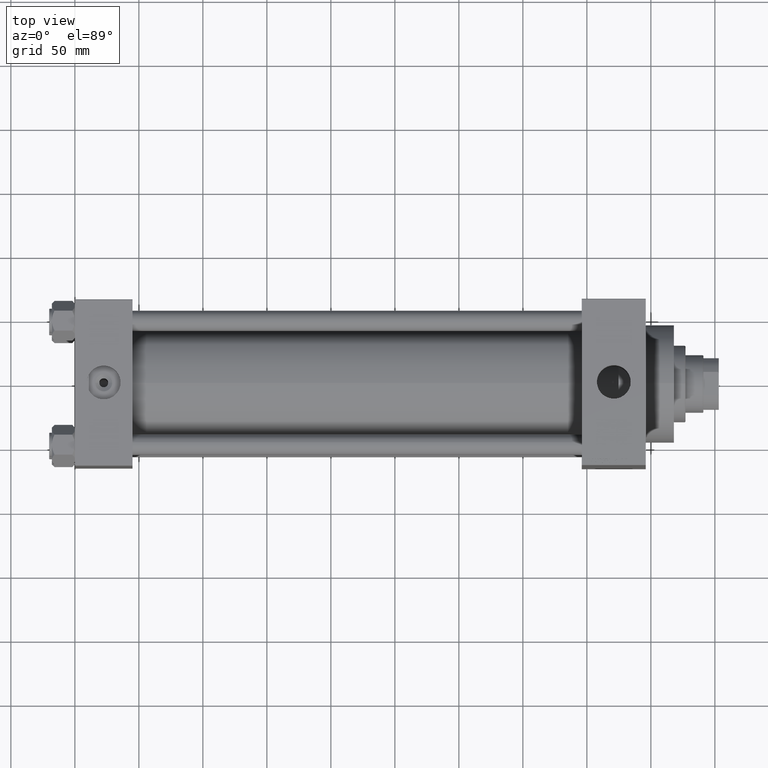
[diagram: clean part render]
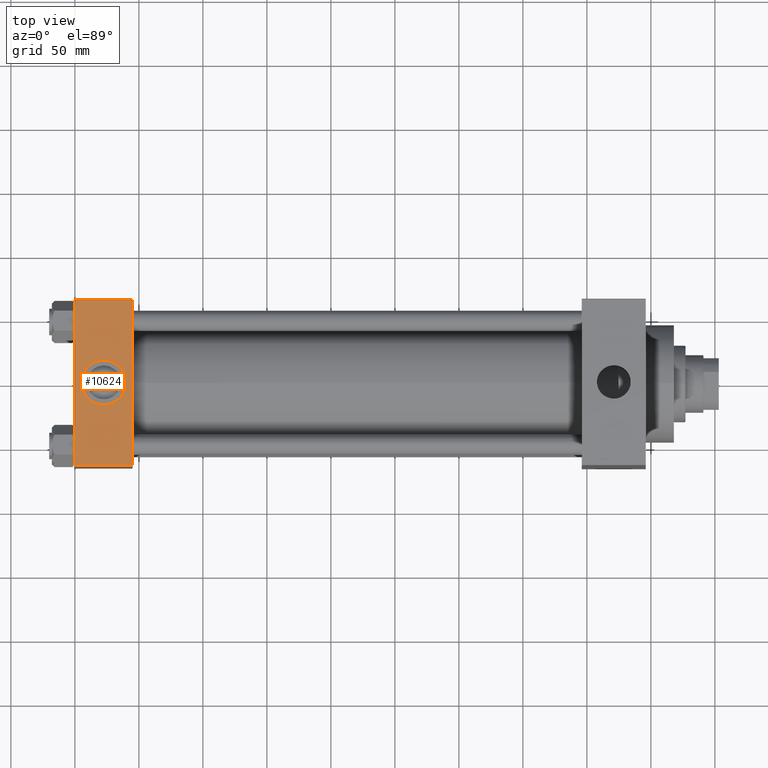
[diagram: same view with one face highlighted and labeled with its STEP entity id]
A machine part, top view. The second image highlights one B-rep face of the part: STEP entity #10624.
In plain terms, the highlighted planar face has unit normal (0, 0, -1).
Its self-contained STEP definition (entity closure, byte-faithful):
#1246 = CIRCLE ( 'NONE', #29810, 17.50000000000000000 ) ;
#1966 = CARTESIAN_POINT ( 'NONE',  ( 22.50000000000000000, -8.673617379884035472E-15, 65.00000000000000000 ) ) ;
#2434 = LINE ( 'NONE', #17181, #43307 ) ;
#2525 = DIRECTION ( 'NONE',  ( 0.000000000000000000, -1.000000000000000000, -1.067522139062650425E-16 ) ) ;
#3732 = EDGE_CURVE ( 'NONE', #23314, #37825, #1246, .T. ) ;
#3801 = DIRECTION ( 'NONE',  ( -1.000000000000000000, 0.000000000000000000, 0.000000000000000000 ) ) ;
#6085 = DIRECTION ( 'NONE',  ( 1.000000000000000000, 0.000000000000000000, 0.000000000000000000 ) ) ;
#7191 = LINE ( 'NONE', #29448, #39944 ) ;
#7348 = ORIENTED_EDGE ( 'NONE', *, *, #3732, .F. ) ;
#7709 = EDGE_LOOP ( 'NONE', ( #7348, #33760 ) ) ;
#9391 = CARTESIAN_POINT ( 'NONE',  ( 0.000000000000000000, -64.49999999999997158, 65.00000000000000000 ) ) ;
#9709 = CARTESIAN_POINT ( 'NONE',  ( 45.00000000000000000, -64.49999999999997158, 65.00000000000000000 ) ) ;
#10624 = ADVANCED_FACE ( 'NONE', ( #24027, #16538 ), #38563, .F. ) ;
#11645 = EDGE_CURVE ( 'NONE', #20869, #46741, #42880, .T. ) ;
#11973 = CARTESIAN_POINT ( 'NONE',  ( 45.00000000000000000, 64.49999999999997158, 65.00000000000001421 ) ) ;
#13181 = CARTESIAN_POINT ( 'NONE',  ( 0.000000000000000000, 64.49999999999997158, 65.00000000000001421 ) ) ;
#14494 = VECTOR ( 'NONE', #6085, 1000.000000000000000 ) ;
#15718 = DIRECTION ( 'NONE',  ( 0.000000000000000000, 0.000000000000000000, 1.000000000000000000 ) ) ;
#16538 = FACE_OUTER_BOUND ( 'NONE', #36047, .T. ) ;
#17181 = CARTESIAN_POINT ( 'NONE',  ( 0.000000000000000000, 65.00000000000000000, 65.00000000000001421 ) ) ;
#17279 = EDGE_CURVE ( 'NONE', #25049, #46741, #17502, .T. ) ;
#17502 = LINE ( 'NONE', #43182, #45486 ) ;
#18297 = ORIENTED_EDGE ( 'NONE', *, *, #41647, .T. ) ;
#18299 = EDGE_CURVE ( 'NONE', #37825, #23314, #40126, .T. ) ;
#18445 = AXIS2_PLACEMENT_3D ( 'NONE', #1966, #28315, #31712 ) ;
#20869 = VERTEX_POINT ( 'NONE', #9391 ) ;
#22239 = ORIENTED_EDGE ( 'NONE', *, *, #11645, .T. ) ;
#23314 = VERTEX_POINT ( 'NONE', #30528 ) ;
#24027 = FACE_BOUND ( 'NONE', #7709, .T. ) ;
#25049 = VERTEX_POINT ( 'NONE', #11973 ) ;
#25381 = DIRECTION ( 'NONE',  ( 0.000000000000000000, -1.000000000000000000, -1.067522139062650425E-16 ) ) ;
#26830 = DIRECTION ( 'NONE',  ( 1.000000000000000000, 0.000000000000000000, 0.000000000000000000 ) ) ;
#28315 = DIRECTION ( 'NONE',  ( 0.000000000000000000, 0.000000000000000000, 1.000000000000000000 ) ) ;
#29448 = CARTESIAN_POINT ( 'NONE',  ( 0.000000000000000000, 64.49999999999997158, 65.00000000000001421 ) ) ;
#29810 = AXIS2_PLACEMENT_3D ( 'NONE', #41862, #15718, #26830 ) ;
#30528 = CARTESIAN_POINT ( 'NONE',  ( 40.00000000000000000, -8.673617379884035472E-15, 65.00000000000000000 ) ) ;
#31059 = DIRECTION ( 'NONE',  ( 0.000000000000000000, 1.067522139062650548E-16, -1.000000000000000000 ) ) ;
#31296 = CARTESIAN_POINT ( 'NONE',  ( 45.00000000000000000, 65.00000000000000000, 65.00000000000001421 ) ) ;
#31712 = DIRECTION ( 'NONE',  ( 1.000000000000000000, 0.000000000000000000, 0.000000000000000000 ) ) ;
#33760 = ORIENTED_EDGE ( 'NONE', *, *, #18299, .F. ) ;
#34031 = VERTEX_POINT ( 'NONE', #13181 ) ;
#34258 = ORIENTED_EDGE ( 'NONE', *, *, #17279, .F. ) ;
#34477 = EDGE_CURVE ( 'NONE', #25049, #34031, #7191, .T. ) ;
#36047 = EDGE_LOOP ( 'NONE', ( #18297, #22239, #34258, #46357 ) ) ;
#37737 = CARTESIAN_POINT ( 'NONE',  ( 4.999999999999997335, -6.530485481376167224E-15, 65.00000000000000000 ) ) ;
#37825 = VERTEX_POINT ( 'NONE', #37737 ) ;
#38563 = PLANE ( 'NONE',  #43039 ) ;
#39944 = VECTOR ( 'NONE', #3801, 1000.000000000000000 ) ;
#40126 = CIRCLE ( 'NONE', #18445, 17.50000000000000000 ) ;
#41647 = EDGE_CURVE ( 'NONE', #34031, #20869, #2434, .T. ) ;
#41862 = CARTESIAN_POINT ( 'NONE',  ( 22.50000000000000000, -8.673617379884035472E-15, 65.00000000000000000 ) ) ;
#42880 = LINE ( 'NONE', #9709, #14494 ) ;
#43039 = AXIS2_PLACEMENT_3D ( 'NONE', #31296, #31059, #46089 ) ;
#43182 = CARTESIAN_POINT ( 'NONE',  ( 45.00000000000000000, 65.00000000000000000, 65.00000000000001421 ) ) ;
#43307 = VECTOR ( 'NONE', #25381, 1000.000000000000000 ) ;
#45486 = VECTOR ( 'NONE', #2525, 1000.000000000000000 ) ;
#46089 = DIRECTION ( 'NONE',  ( 0.000000000000000000, 1.000000000000000000, 1.067522139062650548E-16 ) ) ;
#46357 = ORIENTED_EDGE ( 'NONE', *, *, #34477, .T. ) ;
#46741 = VERTEX_POINT ( 'NONE', #47560 ) ;
#47560 = CARTESIAN_POINT ( 'NONE',  ( 45.00000000000000000, -64.49999999999997158, 65.00000000000000000 ) ) ;